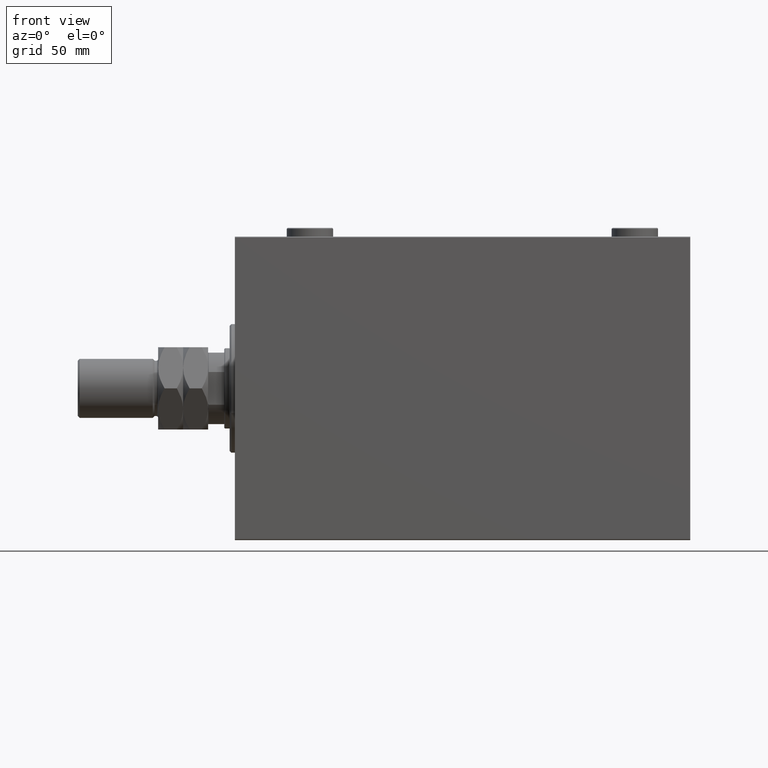
[diagram: clean part render]
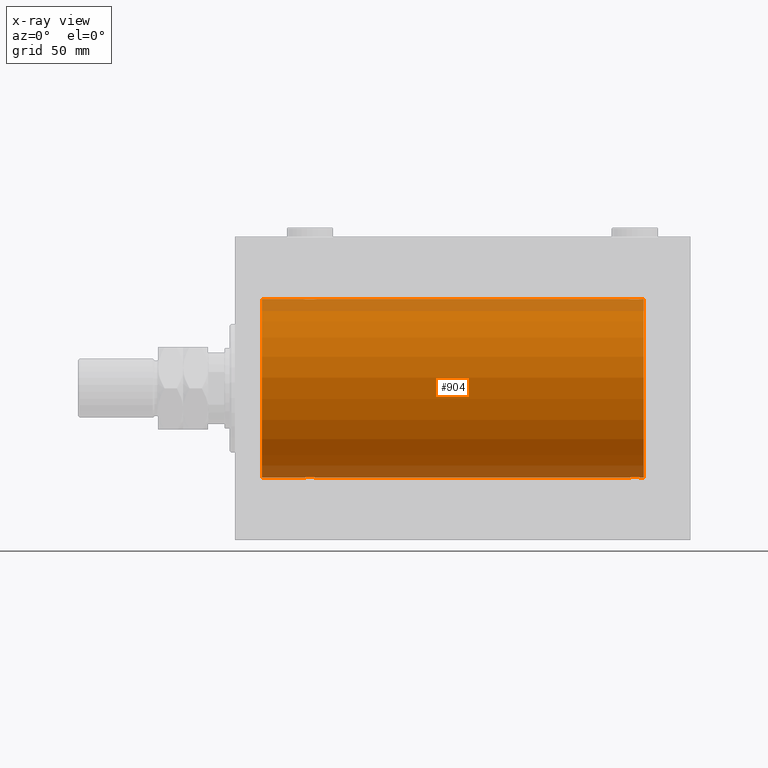
[diagram: x-ray — body ghosted, one internal face saturated and labeled with its STEP entity id]
A machine part, front view, then the same camera in x-ray: the body is ghosted and one INTERNAL B-rep face — a face not visible from any outside direction — is saturated and labeled: STEP entity #904.
In plain terms, the highlighted cylindrical surface (partial cylindrical patch) has radius 50 mm, axis along (-1, -0, -0).
Its self-contained STEP definition (entity closure, byte-faithful):
#19 = CARTESIAN_POINT ( 'NONE',  ( 219.7500000000000284, -0.2773743941468554408, 50.00000000000000711 ) ) ;
#89 = CARTESIAN_POINT ( 'NONE',  ( 219.7500000000000853, -0.2808785465865831776, -50.00000000000001421 ) ) ;
#445 = VECTOR ( 'NONE', #1221, 1000.000000000000000 ) ;
#831 = CARTESIAN_POINT ( 'NONE',  ( 41.71604712973303464, -4.249777379711404457, 49.81906655360197078 ) ) ;
#904 = ADVANCED_FACE ( 'NONE', ( #45380 ), #31564, .F. ) ;
#913 = DIRECTION ( 'NONE',  ( 0.000000000000000000, 0.000000000000000000, 1.000000000000000000 ) ) ;
#966 = VECTOR ( 'NONE', #39878, 1000.000000000000000 ) ;
#1064 = CARTESIAN_POINT ( 'NONE',  ( 43.88217049484444487, -3.820681512513376177, 49.85392475515401145 ) ) ;
#1221 = DIRECTION ( 'NONE',  ( -1.000000000000000000, -0.000000000000000000, -0.000000000000000000 ) ) ;
#1702 = CARTESIAN_POINT ( 'NONE',  ( 229.0000000000000000, 6.123233995736764507E-15, -50.00000000000000000 ) ) ;
#1780 = CARTESIAN_POINT ( 'NONE',  ( 44.80697831839309941, -3.203153387937316854, 49.89767833571684719 ) ) ;
#2072 = CARTESIAN_POINT ( 'NONE',  ( 41.72275072962083442, -4.250219976861629334, -49.81902879621016211 ) ) ;
#2303 = CARTESIAN_POINT ( 'NONE',  ( 37.77757364479219149, -0.5587117664567089470, -49.99763378604803421 ) ) ;
#2777 = CARTESIAN_POINT ( 'NONE',  ( 44.81153066515420136, -3.199146701881660171, -49.89793607725461300 ) ) ;
#2953 = CARTESIAN_POINT ( 'NONE',  ( 223.7227507296208842, -4.250219976861660420, -49.81902879621013369 ) ) ;
#3097 = AXIS2_PLACEMENT_3D ( 'NONE', #20415, #6381, #12819 ) ;
#3240 = DIRECTION ( 'NONE',  ( -1.000000000000000000, -0.000000000000000000, -0.000000000000000000 ) ) ;
#3355 = CARTESIAN_POINT ( 'NONE',  ( 222.6266656342096724, -4.031616700143195509, 49.83731072121799599 ) ) ;
#3471 = CARTESIAN_POINT ( 'NONE',  ( 37.88568086693991432, -1.101350136471744623, 49.98862054280447609 ) ) ;
#3786 = ORIENTED_EDGE ( 'NONE', *, *, #17501, .T. ) ;
#3822 = VERTEX_POINT ( 'NONE', #34134 ) ;
#3823 = CARTESIAN_POINT ( 'NONE',  ( 226.1263164487508277, -3.690299572754722313, 49.86386974736159061 ) ) ;
#3893 = CARTESIAN_POINT ( 'NONE',  ( 219.7500000000000284, -1.485882679034568268E-14, -50.00000000000000000 ) ) ;
#4060 = CARTESIAN_POINT ( 'NONE',  ( 224.5540856488015322, -4.222816005855213106, 49.82138837911247009 ) ) ;
#4178 = CARTESIAN_POINT ( 'NONE',  ( 37.75000000000001421, -0.2773743941468539420, 50.00000000000000711 ) ) ;
#4406 = CARTESIAN_POINT ( 'NONE',  ( 44.58820214676201488, -3.382416624899780011, 49.88570010427956447 ) ) ;
#4722 = CARTESIAN_POINT ( 'NONE',  ( 14.99999999999998579, 0.000000000000000000, 0.000000000000000000 ) ) ;
#4724 = ORIENTED_EDGE ( 'NONE', *, *, #8585, .T. ) ;
#4935 = CARTESIAN_POINT ( 'NONE',  ( 229.0000000000000000, 0.000000000000000000, 50.00000000000000000 ) ) ;
#5867 = CARTESIAN_POINT ( 'NONE',  ( 45.37881717263737613, -2.593114840406121946, -49.93325460257640458 ) ) ;
#6097 = CARTESIAN_POINT ( 'NONE',  ( 37.75000000000000711, 4.113764933535406279E-15, -50.00000000000000000 ) ) ;
#6286 = CARTESIAN_POINT ( 'NONE',  ( 227.2030356195199658, -2.807099414226281286, -49.92152599098506727 ) ) ;
#6335 = CARTESIAN_POINT ( 'NONE',  ( 46.03272642097311973, -1.369753890039645539, -49.98188917176553048 ) ) ;
#6381 = DIRECTION ( 'NONE',  ( -1.000000000000000000, -0.000000000000000000, -0.000000000000000000 ) ) ;
#6517 = CARTESIAN_POINT ( 'NONE',  ( 224.5599786769565469, -4.222042462213138947, -49.82145436824653473 ) ) ;
#6571 = CARTESIAN_POINT ( 'NONE',  ( 39.19302168160691480, -3.203153387937309748, -49.89767833571684008 ) ) ;
#6629 = EDGE_LOOP ( 'NONE', ( #26387, #15374, #23899, #4724, #40335, #15888, #3786, #38519, #46266, #19052, #34896, #41063 ) ) ;
#6750 = CARTESIAN_POINT ( 'NONE',  ( 225.3733343657904129, -4.031616700143205279, -49.83731072121799599 ) ) ;
#6981 = CARTESIAN_POINT ( 'NONE',  ( 221.8736835512492576, -3.690299572754732083, -49.86386974736159061 ) ) ;
#7157 = CARTESIAN_POINT ( 'NONE',  ( 225.3671064755457678, -4.033756670430855173, 49.83713703490974467 ) ) ;
#7274 = CARTESIAN_POINT ( 'NONE',  ( 38.79696438048010521, -2.807099414226279066, 49.92152599098506016 ) ) ;
#7624 = CARTESIAN_POINT ( 'NONE',  ( 227.8183924898787609, -1.886522330773414913, 49.96505190380066352 ) ) ;
#7630 = EDGE_CURVE ( 'NONE', #3822, #31040, #17852, .T. ) ;
#7851 = VERTEX_POINT ( 'NONE', #21467 ) ;
#7934 = CARTESIAN_POINT ( 'NONE',  ( 14.99999999999998579, 6.123233995736764507E-15, -50.00000000000000000 ) ) ;
#8585 = EDGE_CURVE ( 'NONE', #7851, #24481, #37900, .T. ) ;
#8694 = LINE ( 'NONE', #34106, #12802 ) ;
#9162 = DIRECTION ( 'NONE',  ( -1.000000000000000000, -0.000000000000000000, -0.000000000000000000 ) ) ;
#9661 = CARTESIAN_POINT ( 'NONE',  ( 39.87368355124922203, -3.690299572754709878, -49.86386974736159772 ) ) ;
#9891 = CARTESIAN_POINT ( 'NONE',  ( 45.20303561951989479, -2.807099414226267076, -49.92152599098507437 ) ) ;
#10031 = EDGE_CURVE ( 'NONE', #23977, #21228, #29743, .T. ) ;
#10078 = CARTESIAN_POINT ( 'NONE',  ( 228.0327264209731766, -1.369753890039647093, -49.98188917176553048 ) ) ;
#10084 = CIRCLE ( 'NONE', #23754, 50.00000000000000000 ) ;
#10130 = CARTESIAN_POINT ( 'NONE',  ( 37.96920203844657493, -1.375411031076035240, -49.98173289062309976 ) ) ;
#10243 = CARTESIAN_POINT ( 'NONE',  ( 228.2500000000000284, 3.264240518254796977E-15, 50.00000000000000000 ) ) ;
#10478 = CARTESIAN_POINT ( 'NONE',  ( 221.8686360055384910, -3.687400765141532144, 49.86408552998298660 ) ) ;
#10545 = CARTESIAN_POINT ( 'NONE',  ( 228.1143191330600359, -1.101350136471741070, -49.98862054280448319 ) ) ;
#10782 = CARTESIAN_POINT ( 'NONE',  ( 219.7775736447922270, -0.5587117664567331499, -49.99763378604802000 ) ) ;
#11190 = CARTESIAN_POINT ( 'NONE',  ( 227.6860283212195668, -2.133925816755183558, 49.95498245321557818 ) ) ;
#11764 = CARTESIAN_POINT ( 'NONE',  ( 46.22242635520780851, -0.5587117664567096131, 49.99763378604802000 ) ) ;
#11867 = EDGE_CURVE ( 'NONE', #28274, #29688, #21301, .T. ) ;
#12481 = CARTESIAN_POINT ( 'NONE',  ( 44.12631644875079928, -3.690299572754719204, 49.86386974736159772 ) ) ;
#12571 = DIRECTION ( 'NONE',  ( -1.000000000000000000, 0.000000000000000000, 0.000000000000000000 ) ) ;
#12802 = VECTOR ( 'NONE', #9162, 1000.000000000000000 ) ;
#12819 = DIRECTION ( 'NONE',  ( 0.000000000000000000, 0.000000000000000000, 1.000000000000000000 ) ) ;
#12887 = CARTESIAN_POINT ( 'NONE',  ( 14.99999999999998579, 0.000000000000000000, 50.00000000000000000 ) ) ;
#13237 = CARTESIAN_POINT ( 'NONE',  ( 44.13136399446155878, -3.687400765141517045, -49.86408552998298660 ) ) ;
#13651 = CARTESIAN_POINT ( 'NONE',  ( 226.5931272088596415, -3.378657745070633656, -49.88595615988430154 ) ) ;
#13700 = CARTESIAN_POINT ( 'NONE',  ( 40.11782950515556934, -3.820681512513369515, -49.85392475515401145 ) ) ;
#13886 = CARTESIAN_POINT ( 'NONE',  ( 228.2500000000000568, -0.2773743941468490570, -50.00000000000000711 ) ) ;
#14351 = CARTESIAN_POINT ( 'NONE',  ( 220.1816075101212959, -1.886522330773430900, -49.96505190380066352 ) ) ;
#14520 = CARTESIAN_POINT ( 'NONE',  ( 219.7500000000000284, -2.480257572105383217E-23, 50.00000000000000000 ) ) ;
#15329 = CARTESIAN_POINT ( 'NONE',  ( 43.09737617879036975, -4.115209769591108291, 49.83039196709102470 ) ) ;
#15374 = ORIENTED_EDGE ( 'NONE', *, *, #10031, .T. ) ;
#15399 = CARTESIAN_POINT ( 'NONE',  ( 219.7500000000000284, -2.480257572105383217E-23, 50.00000000000000000 ) ) ;
#15888 = ORIENTED_EDGE ( 'NONE', *, *, #11867, .T. ) ;
#16280 = CARTESIAN_POINT ( 'NONE',  ( 45.81839248987871827, -1.886522330773408029, 49.96505190380065642 ) ) ;
#16560 = CARTESIAN_POINT ( 'NONE',  ( 40.90262382120963025, -4.115209769591096745, -49.83039196709104601 ) ) ;
#16981 = CARTESIAN_POINT ( 'NONE',  ( 227.6893715567939580, -2.128188802142363389, -49.95522967821975158 ) ) ;
#17028 = CARTESIAN_POINT ( 'NONE',  ( 46.22310752799000255, -0.5531336717328990682, -49.99769193709643389 ) ) ;
#17214 = CARTESIAN_POINT ( 'NONE',  ( 227.3788171726373264, -2.593114840406127719, -49.93325460257641879 ) ) ;
#17261 = CARTESIAN_POINT ( 'NONE',  ( 38.62480015918034582, -2.597781786597462617, -49.93300953359122474 ) ) ;
#17501 = EDGE_CURVE ( 'NONE', #29688, #32265, #46922, .T. ) ;
#17847 = CARTESIAN_POINT ( 'NONE',  ( 220.3106284432061841, -2.128188802142376268, 49.95522967821975158 ) ) ;
#17852 = B_SPLINE_CURVE_WITH_KNOTS ( 'NONE', 3,
 ( #36714, #4178, #18667, #3471, #17969, #28892, #43392, #39820, #7274, #36247, #26018, #37889, #33379, #40974, #19603, #44561, #831, #37651, #45034, #15329, #22461, #1064, #12481, #4406, #1780, #29822, #36939, #18889, #16280, #33851, #44323, #11764, #40513, #26963 ),
 .UNSPECIFIED., .F., .F.,
 ( 4, 2, 2, 2, 2, 2, 2, 2, 2, 2, 2, 2, 2, 2, 2, 2, 4 ),
 ( 0.01329343152928760124, 0.01412407817529638850, 0.01495472482130517575, 0.01578537146731396126, 0.01661601811332274678, 0.01744666475933153577, 0.01827731140534032128, 0.01910795805134911027, 0.01993860469735789925, 0.02076925134336668477, 0.02159989798937547029, 0.02243054463538425927, 0.02326119128139304479, 0.02409183792740183377, 0.02492248457341061929, 0.02575313121941940481, 0.02658377786542819379 ),
 .UNSPECIFIED. ) ;
#17916 = CARTESIAN_POINT ( 'NONE',  ( 221.1930216816069219, -3.203153387937335506, -49.89767833571684008 ) ) ;
#17969 = CARTESIAN_POINT ( 'NONE',  ( 37.96727357902688027, -1.369753890039652644, 49.98188917176551627 ) ) ;
#18031 = CARTESIAN_POINT ( 'NONE',  ( 228.2500000000000284, 6.123233970934497231E-15, -50.00000000000000000 ) ) ;
#18214 = CARTESIAN_POINT ( 'NONE',  ( 229.0000000000000000, 0.000000000000000000, 50.00000000000000000 ) ) ;
#18318 = CARTESIAN_POINT ( 'NONE',  ( 227.1992192796128336, -2.811461347331109639, 49.92127983148852621 ) ) ;
#18551 = CARTESIAN_POINT ( 'NONE',  ( 228.1124970108033949, -1.108337267831492889, 49.98846998601261760 ) ) ;
#18667 = CARTESIAN_POINT ( 'NONE',  ( 37.77689247200999034, -0.5531336717329059516, 49.99769193709643389 ) ) ;
#18889 = CARTESIAN_POINT ( 'NONE',  ( 45.68602832121950286, -2.133925816755175564, 49.95498245321557818 ) ) ;
#18907 = CARTESIAN_POINT ( 'NONE',  ( 229.0000000000000000, 6.123233995736764507E-15, -50.00000000000000000 ) ) ;
#19052 = ORIENTED_EDGE ( 'NONE', *, *, #45932, .F. ) ;
#19603 = CARTESIAN_POINT ( 'NONE',  ( 40.89676703965783844, -4.113647494206482236, 49.83052139214890985 ) ) ;
#20135 = CARTESIAN_POINT ( 'NONE',  ( 45.82100581985226029, -1.881229021238117305, -49.96525240872482954 ) ) ;
#20367 = CARTESIAN_POINT ( 'NONE',  ( 42.55997867695646875, -4.222042462213109637, -49.82145436824654183 ) ) ;
#20415 = CARTESIAN_POINT ( 'NONE',  ( 229.0000000000000000, 0.000000000000000000, 0.000000000000000000 ) ) ;
#21018 = CARTESIAN_POINT ( 'NONE',  ( 224.2839528702670293, -4.249777379711420444, -49.81906655360197789 ) ) ;
#21228 = VERTEX_POINT ( 'NONE', #18031 ) ;
#21248 = CARTESIAN_POINT ( 'NONE',  ( 222.9026238212096587, -4.115209769591121614, -49.83039196709102470 ) ) ;
#21301 = LINE ( 'NONE', #35789, #44516 ) ;
#21412 = CARTESIAN_POINT ( 'NONE',  ( 225.0973761787904550, -4.115209769591112732, 49.83039196709102470 ) ) ;
#21467 = CARTESIAN_POINT ( 'NONE',  ( 219.7500000000000284, -1.485882679034568268E-14, -50.00000000000000000 ) ) ;
#21479 = CARTESIAN_POINT ( 'NONE',  ( 221.4117978532380278, -3.382416624899790669, -49.88570010427955737 ) ) ;
#21715 = CARTESIAN_POINT ( 'NONE',  ( 225.1032329603422397, -4.113647494206493782, -49.83052139214891696 ) ) ;
#21876 = CARTESIAN_POINT ( 'NONE',  ( 222.8967670396579024, -4.113647494206492006, 49.83052139214891696 ) ) ;
#22113 = CARTESIAN_POINT ( 'NONE',  ( 221.4068727911404721, -3.378657745070624774, 49.88595615988430154 ) ) ;
#22461 = CARTESIAN_POINT ( 'NONE',  ( 43.36710647554576070, -4.033756670430846292, 49.83713703490974467 ) ) ;
#22469 = DIRECTION ( 'NONE',  ( 0.000000000000000000, 0.000000000000000000, 1.000000000000000000 ) ) ;
#22527 = EDGE_CURVE ( 'NONE', #3822, #32265, #8694, .T. ) ;
#22962 = VERTEX_POINT ( 'NONE', #4935 ) ;
#23684 = CARTESIAN_POINT ( 'NONE',  ( 46.25000000000000000, -0.2773743941468470031, -50.00000000000000000 ) ) ;
#23754 = AXIS2_PLACEMENT_3D ( 'NONE', #45286, #41698, #22469 ) ;
#23899 = ORIENTED_EDGE ( 'NONE', *, *, #28747, .T. ) ;
#23977 = VERTEX_POINT ( 'NONE', #18907 ) ;
#24481 = VERTEX_POINT ( 'NONE', #45236 ) ;
#24616 = CARTESIAN_POINT ( 'NONE',  ( 43.37333436579038448, -4.031616700143170640, -49.83731072121799599 ) ) ;
#24732 = CARTESIAN_POINT ( 'NONE',  ( 220.6211828273627304, -2.593114840406140598, 49.93325460257641879 ) ) ;
#25031 = CARTESIAN_POINT ( 'NONE',  ( 226.1313639944616227, -3.687400765141540582, -49.86408552998298660 ) ) ;
#25271 = CARTESIAN_POINT ( 'NONE',  ( 228.2500000000000284, 6.123233970934497231E-15, -50.00000000000000000 ) ) ;
#25383 = CARTESIAN_POINT ( 'NONE',  ( 229.0000000000000000, 0.000000000000000000, 50.00000000000000000 ) ) ;
#26018 = CARTESIAN_POINT ( 'NONE',  ( 39.40687279114044372, -3.378657745070624774, 49.88595615988428733 ) ) ;
#26387 = ORIENTED_EDGE ( 'NONE', *, *, #40290, .F. ) ;
#26412 = AXIS2_PLACEMENT_3D ( 'NONE', #4722, #12571, #913 ) ;
#26963 = CARTESIAN_POINT ( 'NONE',  ( 46.25000000000000000, 5.983909456282587589E-15, 50.00000000000000000 ) ) ;
#26977 = VECTOR ( 'NONE', #30296, 1000.000000000000000 ) ;
#27944 = CARTESIAN_POINT ( 'NONE',  ( 40.63289352445425351, -4.033756670430834745, -49.83713703490974467 ) ) ;
#28137 = CARTESIAN_POINT ( 'NONE',  ( 225.8874473939280279, -3.818052230167738870, -49.85412671291929598 ) ) ;
#28189 = CARTESIAN_POINT ( 'NONE',  ( 42.28395287026697957, -4.249777379711388470, -49.81906655360197789 ) ) ;
#28274 = VERTEX_POINT ( 'NONE', #36370 ) ;
#28306 = CARTESIAN_POINT ( 'NONE',  ( 219.7768924720100472, -0.5531336717329072838, 49.99769193709643389 ) ) ;
#28377 = CARTESIAN_POINT ( 'NONE',  ( 223.4459143511985246, -4.222816005855223764, -49.82138837911247009 ) ) ;
#28542 = CARTESIAN_POINT ( 'NONE',  ( 226.5882021467620291, -3.382416624899780899, 49.88570010427955737 ) ) ;
#28747 = EDGE_CURVE ( 'NONE', #21228, #7851, #34154, .T. ) ;
#28840 = CARTESIAN_POINT ( 'NONE',  ( 219.9692020384465820, -1.375411031076054336, -49.98173289062309976 ) ) ;
#28892 = CARTESIAN_POINT ( 'NONE',  ( 38.17899418014773261, -1.881229021238125521, 49.96525240872481533 ) ) ;
#28904 = LINE ( 'NONE', #18214, #43640 ) ;
#28952 = LINE ( 'NONE', #25383, #966 ) ;
#29008 = CARTESIAN_POINT ( 'NONE',  ( 219.9672735790269087, -1.369753890039667299, 49.98188917176553048 ) ) ;
#29247 = CARTESIAN_POINT ( 'NONE',  ( 222.1125526060720290, -3.818052230167728656, 49.85412671291929598 ) ) ;
#29688 = VERTEX_POINT ( 'NONE', #7934 ) ;
#29743 = LINE ( 'NONE', #1702, #445 ) ;
#29822 = CARTESIAN_POINT ( 'NONE',  ( 45.19921927961282648, -2.811461347331102534, 49.92127983148852621 ) ) ;
#29849 = B_SPLINE_CURVE_WITH_KNOTS ( 'NONE', 3,
 ( #14520, #19, #28306, #32566, #29008, #39702, #17847, #24732, #43038, #43510, #22113, #10478, #29247, #3355, #21876, #36362, #35666, #39938, #4060, #21412, #7157, #35900, #3823, #28542, #46843, #18318, #32802, #11190, #7624, #40165, #18551, #32096, #33037, #10243 ),
 .UNSPECIFIED., .F., .F.,
 ( 4, 2, 2, 2, 2, 2, 2, 2, 2, 2, 2, 2, 2, 2, 2, 2, 4 ),
 ( 0.01329343152928759257, 0.01412407817529637809, 0.01495472482130516534, 0.01578537146731395086, 0.01661601811332273637, 0.01744666475933152189, 0.01827731140534030740, 0.01910795805134909292, 0.01993860469735788191, 0.02076925134336666742, 0.02159989798937545294, 0.02243054463538423846, 0.02326119128139302744, 0.02409183792740181296, 0.02492248457341059847, 0.02575313121941938399, 0.02658377786542816951 ),
 .UNSPECIFIED. ) ;
#30212 = CARTESIAN_POINT ( 'NONE',  ( 46.25000000000000000, 5.983909456282587589E-15, 50.00000000000000000 ) ) ;
#30296 = DIRECTION ( 'NONE',  ( -1.000000000000000000, -0.000000000000000000, -0.000000000000000000 ) ) ;
#30497 = B_SPLINE_CURVE_WITH_KNOTS ( 'NONE', 3,
 ( #41980, #23684, #17028, #35318, #6335, #20135, #45799, #5867, #9891, #2777, #46493, #13237, #34628, #24616, #38420, #20367, #28189, #2072, #38652, #16560, #27944, #13700, #9661, #31053, #6571, #34856, #17261, #31980, #45563, #10130, #46028, #2303, #38184, #6097 ),
 .UNSPECIFIED., .F., .F.,
 ( 4, 2, 2, 2, 2, 2, 2, 2, 2, 2, 2, 2, 2, 2, 2, 2, 4 ),
 ( 0.01329343152928757175, 0.01412407817529635380, 0.01495472482130513585, 0.01578537146731391616, 0.01661601811332270168, 0.01744666475933148372, 0.01827731140534026577, 0.01910795805134904782, 0.01993860469735782986, 0.02076925134336661191, 0.02159989798937539396, 0.02243054463538417601, 0.02326119128139295805, 0.02409183792740174010, 0.02492248457341052215, 0.02575313121941930072, 0.02658377786542808624 ),
 .UNSPECIFIED. ) ;
#31040 = VERTEX_POINT ( 'NONE', #30212 ) ;
#31053 = CARTESIAN_POINT ( 'NONE',  ( 39.41179785323801354, -3.382416624899770685, -49.88570010427955737 ) ) ;
#31112 = CARTESIAN_POINT ( 'NONE',  ( 228.2500000000000284, 3.264240518254796977E-15, 50.00000000000000000 ) ) ;
#31564 = CYLINDRICAL_SURFACE ( 'NONE', #3097, 50.00000000000000000 ) ;
#31980 = CARTESIAN_POINT ( 'NONE',  ( 38.31397167878050425, -2.133925816755180449, -49.95498245321556396 ) ) ;
#32096 = CARTESIAN_POINT ( 'NONE',  ( 228.2224263552078014, -0.5587117664567154973, 49.99763378604802000 ) ) ;
#32166 = CARTESIAN_POINT ( 'NONE',  ( 222.6328935244542890, -4.033756670430864943, -49.83713703490974467 ) ) ;
#32265 = VERTEX_POINT ( 'NONE', #12887 ) ;
#32305 = EDGE_CURVE ( 'NONE', #40970, #32473, #29849, .T. ) ;
#32403 = CARTESIAN_POINT ( 'NONE',  ( 220.6248001591803813, -2.597781786597481712, -49.93300953359122474 ) ) ;
#32473 = VERTEX_POINT ( 'NONE', #31112 ) ;
#32566 = CARTESIAN_POINT ( 'NONE',  ( 219.8856808669399356, -1.101350136471746399, 49.98862054280448319 ) ) ;
#32675 = EDGE_CURVE ( 'NONE', #22962, #32473, #28952, .T. ) ;
#32802 = CARTESIAN_POINT ( 'NONE',  ( 227.3751998408197039, -2.597781786597468390, 49.93300953359122474 ) ) ;
#33037 = CARTESIAN_POINT ( 'NONE',  ( 228.2500000000000568, -0.2808785465865648034, 50.00000000000001421 ) ) ;
#33379 = CARTESIAN_POINT ( 'NONE',  ( 40.11255260607201478, -3.818052230167719330, 49.85412671291930309 ) ) ;
#33851 = CARTESIAN_POINT ( 'NONE',  ( 46.03079796155342507, -1.375411031076031687, 49.98173289062309976 ) ) ;
#34098 = CARTESIAN_POINT ( 'NONE',  ( 229.0000000000000000, 6.123233995736764507E-15, -50.00000000000000000 ) ) ;
#34106 = CARTESIAN_POINT ( 'NONE',  ( 229.0000000000000000, 0.000000000000000000, 50.00000000000000000 ) ) ;
#34134 = CARTESIAN_POINT ( 'NONE',  ( 37.75000000000000711, -2.480809774739037926E-23, 50.00000000000000000 ) ) ;
#34154 = B_SPLINE_CURVE_WITH_KNOTS ( 'NONE', 3,
 ( #25271, #13886, #39069, #10545, #10078, #35498, #16981, #17214, #6286, #35733, #13651, #25031, #28137, #6750, #21715, #6517, #21018, #2953, #28377, #21248, #32166, #39528, #6981, #21479, #17916, #35969, #32403, #46911, #14351, #28840, #43341, #10782, #89, #3893 ),
 .UNSPECIFIED., .F., .F.,
 ( 4, 2, 2, 2, 2, 2, 2, 2, 2, 2, 2, 2, 2, 2, 2, 2, 4 ),
 ( 0.01329343152928758563, 0.01412407817529637115, 0.01495472482130515840, 0.01578537146731394392, 0.01661601811332272943, 0.01744666475933151495, 0.01827731140534030393, 0.01910795805134908945, 0.01993860469735787497, 0.02076925134336666395, 0.02159989798937544947, 0.02243054463538423499, 0.02326119128139302050, 0.02409183792740180602, 0.02492248457341059154, 0.02575313121941938052, 0.02658377786542816604 ),
 .UNSPECIFIED. ) ;
#34628 = CARTESIAN_POINT ( 'NONE',  ( 43.88744739392799232, -3.818052230167705119, -49.85412671291930309 ) ) ;
#34856 = CARTESIAN_POINT ( 'NONE',  ( 38.80078072038718062, -2.811461347331096317, -49.92127983148851911 ) ) ;
#34896 = ORIENTED_EDGE ( 'NONE', *, *, #32305, .T. ) ;
#35318 = CARTESIAN_POINT ( 'NONE',  ( 46.11431913306007857, -1.101350136471737073, -49.98862054280448319 ) ) ;
#35498 = CARTESIAN_POINT ( 'NONE',  ( 227.8210058198523598, -1.881229021238121524, -49.96525240872482954 ) ) ;
#35666 = CARTESIAN_POINT ( 'NONE',  ( 223.7160471297330560, -4.249777379711409786, 49.81906655360197789 ) ) ;
#35733 = CARTESIAN_POINT ( 'NONE',  ( 226.8115306651542085, -3.199146701881677490, -49.89793607725460589 ) ) ;
#35789 = CARTESIAN_POINT ( 'NONE',  ( 229.0000000000000000, 6.123233995736764507E-15, -50.00000000000000000 ) ) ;
#35900 = CARTESIAN_POINT ( 'NONE',  ( 225.8821704948444733, -3.820681512513388167, 49.85392475515401145 ) ) ;
#35969 = CARTESIAN_POINT ( 'NONE',  ( 220.8007807203871948, -2.811461347331121186, -49.92127983148852621 ) ) ;
#36247 = CARTESIAN_POINT ( 'NONE',  ( 39.18846933484580575, -3.199146701881673938, 49.89793607725460589 ) ) ;
#36362 = CARTESIAN_POINT ( 'NONE',  ( 223.4400213230435668, -4.222042462213131842, 49.82145436824653473 ) ) ;
#36370 = CARTESIAN_POINT ( 'NONE',  ( 37.75000000000000711, 4.113764933535406279E-15, -50.00000000000000000 ) ) ;
#36714 = CARTESIAN_POINT ( 'NONE',  ( 37.75000000000000711, -2.480809774739037926E-23, 50.00000000000000000 ) ) ;
#36939 = CARTESIAN_POINT ( 'NONE',  ( 45.37519984081967550, -2.597781786597460840, 49.93300953359122474 ) ) ;
#37651 = CARTESIAN_POINT ( 'NONE',  ( 42.27724927037917979, -4.250219976861642657, 49.81902879621012659 ) ) ;
#37889 = CARTESIAN_POINT ( 'NONE',  ( 39.86863600553846254, -3.687400765141531700, 49.86408552998297949 ) ) ;
#37900 = LINE ( 'NONE', #34098, #26977 ) ;
#38184 = CARTESIAN_POINT ( 'NONE',  ( 37.75000000000002132, -0.2808785465865586417, -50.00000000000002842 ) ) ;
#38420 = CARTESIAN_POINT ( 'NONE',  ( 43.10323296034216156, -4.113647494206467137, -49.83052139214892406 ) ) ;
#38519 = ORIENTED_EDGE ( 'NONE', *, *, #22527, .F. ) ;
#38652 = CARTESIAN_POINT ( 'NONE',  ( 41.44591435119853173, -4.222816005855193566, -49.82138837911247720 ) ) ;
#38952 = EDGE_CURVE ( 'NONE', #24481, #28274, #30497, .T. ) ;
#39069 = CARTESIAN_POINT ( 'NONE',  ( 228.2231075279900381, -0.5531336717329015107, -49.99769193709643389 ) ) ;
#39365 = DIRECTION ( 'NONE',  ( -1.000000000000000000, -0.000000000000000000, -0.000000000000000000 ) ) ;
#39528 = CARTESIAN_POINT ( 'NONE',  ( 222.1178295051556688, -3.820681512513397937, -49.85392475515401145 ) ) ;
#39702 = CARTESIAN_POINT ( 'NONE',  ( 220.1789941801477539, -1.881229021238139731, 49.96525240872482954 ) ) ;
#39820 = CARTESIAN_POINT ( 'NONE',  ( 38.62118282736263097, -2.593114840406128163, 49.93325460257639747 ) ) ;
#39878 = DIRECTION ( 'NONE',  ( -1.000000000000000000, -0.000000000000000000, -0.000000000000000000 ) ) ;
#39938 = CARTESIAN_POINT ( 'NONE',  ( 224.2772492703792011, -4.250219976861650650, 49.81902879621013369 ) ) ;
#40165 = CARTESIAN_POINT ( 'NONE',  ( 228.0307979615534748, -1.375411031076039237, 49.98173289062309976 ) ) ;
#40290 = EDGE_CURVE ( 'NONE', #23977, #22962, #10084, .T. ) ;
#40335 = ORIENTED_EDGE ( 'NONE', *, *, #38952, .T. ) ;
#40513 = CARTESIAN_POINT ( 'NONE',  ( 46.25000000000004263, -0.2808785465865667463, 50.00000000000001421 ) ) ;
#40970 = VERTEX_POINT ( 'NONE', #15399 ) ;
#40974 = CARTESIAN_POINT ( 'NONE',  ( 40.62666563420964394, -4.031616700143186627, 49.83731072121798888 ) ) ;
#41063 = ORIENTED_EDGE ( 'NONE', *, *, #32675, .F. ) ;
#41698 = DIRECTION ( 'NONE',  ( -1.000000000000000000, 0.000000000000000000, 0.000000000000000000 ) ) ;
#41980 = CARTESIAN_POINT ( 'NONE',  ( 46.25000000000000000, 6.123233970928975205E-15, -50.00000000000000000 ) ) ;
#43038 = CARTESIAN_POINT ( 'NONE',  ( 220.7969643804801194, -2.807099414226295941, 49.92152599098506727 ) ) ;
#43341 = CARTESIAN_POINT ( 'NONE',  ( 219.8875029891967188, -1.108337267831510209, -49.98846998601261760 ) ) ;
#43392 = CARTESIAN_POINT ( 'NONE',  ( 38.31062844320613436, -2.128188802142365166, 49.95522967821974447 ) ) ;
#43510 = CARTESIAN_POINT ( 'NONE',  ( 221.1884693348459052, -3.199146701881689481, 49.89793607725460589 ) ) ;
#43640 = VECTOR ( 'NONE', #39365, 1000.000000000000000 ) ;
#44323 = CARTESIAN_POINT ( 'NONE',  ( 46.11249701080335228, -1.108337267831485340, 49.98846998601261760 ) ) ;
#44516 = VECTOR ( 'NONE', #3240, 1000.000000000000000 ) ;
#44561 = CARTESIAN_POINT ( 'NONE',  ( 41.44002132304353125, -4.222042462213122960, 49.82145436824652762 ) ) ;
#45034 = CARTESIAN_POINT ( 'NONE',  ( 42.55408564880149669, -4.222816005855208665, 49.82138837911247009 ) ) ;
#45236 = CARTESIAN_POINT ( 'NONE',  ( 46.25000000000000000, 6.123233970928975205E-15, -50.00000000000000000 ) ) ;
#45286 = CARTESIAN_POINT ( 'NONE',  ( 229.0000000000000000, 0.000000000000000000, 0.000000000000000000 ) ) ;
#45380 = FACE_OUTER_BOUND ( 'NONE', #6629, .T. ) ;
#45563 = CARTESIAN_POINT ( 'NONE',  ( 38.18160751012128173, -1.886522330773408251, -49.96505190380065642 ) ) ;
#45799 = CARTESIAN_POINT ( 'NONE',  ( 45.68937155679385853, -2.128188802142360281, -49.95522967821975868 ) ) ;
#45932 = EDGE_CURVE ( 'NONE', #40970, #31040, #28904, .T. ) ;
#46028 = CARTESIAN_POINT ( 'NONE',  ( 37.88750298919665482, -1.108337267831484008, -49.98846998601261760 ) ) ;
#46266 = ORIENTED_EDGE ( 'NONE', *, *, #7630, .T. ) ;
#46493 = CARTESIAN_POINT ( 'NONE',  ( 44.59312720885954917, -3.378657745070612339, -49.88595615988430154 ) ) ;
#46843 = CARTESIAN_POINT ( 'NONE',  ( 226.8069783183931349, -3.203153387937324403, 49.89767833571684008 ) ) ;
#46911 = CARTESIAN_POINT ( 'NONE',  ( 220.3139716787804332, -2.133925816755195992, -49.95498245321557818 ) ) ;
#46922 = CIRCLE ( 'NONE', #26412, 50.00000000000000000 ) ;